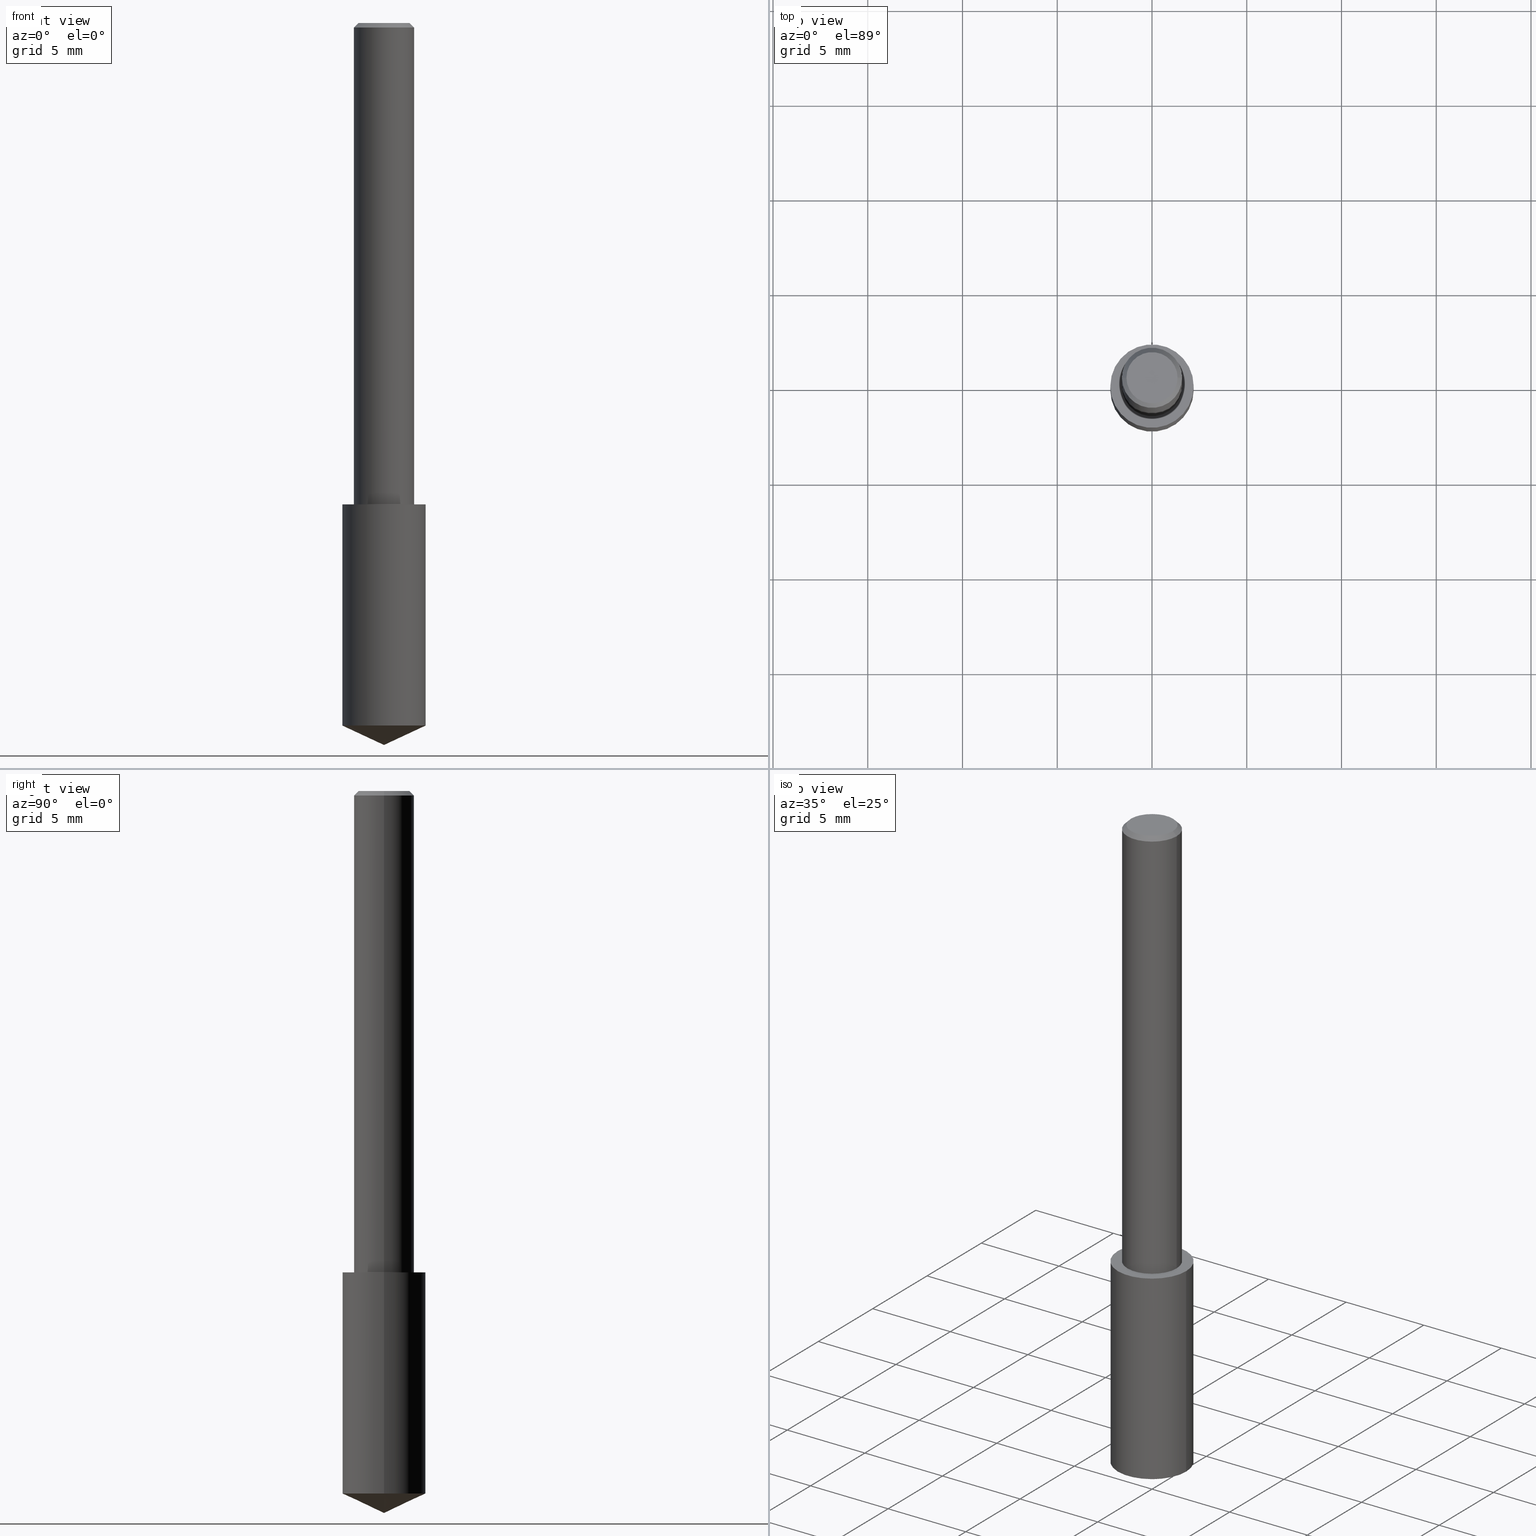
[diagram: canonical four-view strip — front | top / right | iso, engineering-drawing reading convention]
A machine part, canonical four-view strip (front | top / right | iso — engineering-drawing reading convention). The complete STEP part file that produces these views, byte-faithful:
ISO-10303-21;
HEADER;
FILE_DESCRIPTION (( 'STEP AP203' ),
    '1' );
FILE_NAME ('06110.STEP',
    '2024-04-30T18:20:57',
    ( '' ),
    ( '' ),
    'SwSTEP 2.0',
    'SolidWorks 2023',
    '' );
FILE_SCHEMA (( 'CONFIG_CONTROL_DESIGN' ));
ENDSEC;

DATA;
#1 = DIRECTION ( 'NONE',  ( -2.445468806185136597E-29, 3.491481338843145583E-15, 1.000000000000000000 ) ) ;
#2 = PERSON_AND_ORGANIZATION_ROLE ( 'design_owner' ) ;
#3 = CIRCLE ( 'NONE', #252, 0.06250000000000012490 ) ;
#4 = CARTESIAN_POINT ( 'NONE',  ( 2.292627005798582375E-31, -3.273263755165472650E-17, -0.009375000000000067307 ) ) ;
#5 = PERSON_AND_ORGANIZATION ( #324, #83 ) ;
#6 = ADVANCED_FACE ( 'NONE', ( #276 ), #151, .T. ) ;
#7 = EDGE_LOOP ( 'NONE', ( #31, #33 ) ) ;
#8 = DIRECTION ( 'NONE',  ( -2.445468806185136597E-29, 3.491481338843145583E-15, 1.000000000000000000 ) ) ;
#9 = DATE_AND_TIME ( #241, #294 ) ;
#10 = ORIENTED_EDGE ( 'NONE', *, *, #130, .T. ) ;
#11 = EDGE_CURVE ( 'NONE', #115, #13, #203, .T. ) ;
#12 = CARTESIAN_POINT ( 'NONE',  ( -9.261009624683002666E-28, 1.322226732217803884E-13, 37.87007874015748143 ) ) ;
#13 = VERTEX_POINT ( 'NONE', #303 ) ;
#14 = AXIS2_PLACEMENT_3D ( 'NONE', #307, #135, #114 ) ;
#15 = ORIENTED_EDGE ( 'NONE', *, *, #291, .T. ) ;
#16 = EDGE_CURVE ( 'NONE', #63, #316, #226, .T. ) ;
#17 = AXIS2_PLACEMENT_3D ( 'NONE', #275, #233, #205 ) ;
#18 = APPROVAL ( #264, 'UNSPECIFIED' ) ;
#19 = ORIENTED_EDGE ( 'NONE', *, *, #25, .F. ) ;
#20 = CARTESIAN_POINT ( 'NONE',  ( -7.487088864773345706E-50, 1.068957861474247695E-35, 3.061616997868395197E-21 ) ) ;
#21 = ADVANCED_FACE ( 'NONE', ( #43 ), #201, .F. ) ;
#22 = VECTOR ( 'NONE', #251, 39.37007874015748854 ) ;
#23 = CIRCLE ( 'NONE', #46, 0.08659999999999998255 ) ;
#24 = VECTOR ( 'NONE', #243, 39.37007874015748143 ) ;
#25 = EDGE_CURVE ( 'NONE', #115, #246, #250, .T. ) ;
#26 = DIRECTION ( 'NONE',  ( 1.000000000000000000, -6.982962677686264344E-15, 0.000000000000000000 ) ) ;
#27 = FACE_OUTER_BOUND ( 'NONE', #242, .T. ) ;
#28 = PERSON_AND_ORGANIZATION_ROLE ( 'creator' ) ;
#29 = ORIENTED_EDGE ( 'NONE', *, *, #293, .T. ) ;
#30 = DIRECTION ( 'NONE',  ( 1.000000000000000000, -6.982962677686269866E-15, 0.000000000000000000 ) ) ;
#31 = ORIENTED_EDGE ( 'NONE', *, *, #213, .T. ) ;
#32 = VECTOR ( 'NONE', #91, 39.37007874015748143 ) ;
#33 = ORIENTED_EDGE ( 'NONE', *, *, #51, .T. ) ;
#34 = EDGE_CURVE ( 'NONE', #246, #179, #98, .T. ) ;
#35 = AXIS2_PLACEMENT_3D ( 'NONE', #124, #93, #235 ) ;
#36 = CARTESIAN_POINT ( 'NONE',  ( 0.06250000000000006939, -4.364351673553921624E-16, 3.047610484872463374E-30 ) ) ;
#37 = CARTESIAN_POINT ( 'NONE',  ( -0.06250000000000006939, 4.440892098500631092E-16, -3.074334431409319267E-30 ) ) ;
#38 = APPROVAL ( #260, 'UNSPECIFIED' ) ;
#39 = FACE_OUTER_BOUND ( 'NONE', #168, .T. ) ;
#40 = DIRECTION ( 'NONE',  ( 0.7071067811865450192, -7.319954787623246579E-15, -0.7071067811865500152 ) ) ;
#41 = CARTESIAN_POINT ( 'NONE',  ( 3.569449693217560249E-29, -5.096228159724480781E-15, -1.459617756803777144 ) ) ;
#42 = EDGE_CURVE ( 'NONE', #194, #179, #326, .T. ) ;
#43 = FACE_OUTER_BOUND ( 'NONE', #7, .T. ) ;
#44 = AXIS2_PLACEMENT_3D ( 'NONE', #104, #8, #255 ) ;
#45 = FACE_OUTER_BOUND ( 'NONE', #239, .T. ) ;
#46 = AXIS2_PLACEMENT_3D ( 'NONE', #281, #1, #272 ) ;
#47 = PLANE ( 'NONE',  #333 ) ;
#48 = PERSON_AND_ORGANIZATION ( #324, #83 ) ;
#49 = CALENDAR_DATE ( 2024, 30, 4 ) ;
#50 = ORIENTED_EDGE ( 'NONE', *, *, #51, .F. ) ;
#51 = EDGE_CURVE ( 'NONE', #63, #134, #61, .T. ) ;
#52 = DIRECTION ( 'NONE',  ( -2.445468806185136597E-29, 3.491481338843145583E-15, 1.000000000000000000 ) ) ;
#53 = AXIS2_PLACEMENT_3D ( 'NONE', #66, #150, #96 ) ;
#54 = COORDINATED_UNIVERSAL_TIME_OFFSET ( 5, 0, .BEHIND. ) ;
#55 = ORIENTED_EDGE ( 'NONE', *, *, #34, .F. ) ;
#56 = CARTESIAN_POINT ( 'NONE',  ( -0.08659999999999998255, -3.678524740115566939E-15, -1.000000000000000222 ) ) ;
#57 = DATE_AND_TIME ( #290, #132 ) ;
#58 = ORIENTED_EDGE ( 'NONE', *, *, #293, .F. ) ;
#59 = ORIENTED_EDGE ( 'NONE', *, *, #100, .T. ) ;
#60 = ADVANCED_FACE ( 'NONE', ( #155 ), #237, .T. ) ;
#61 = CIRCLE ( 'NONE', #249, 0.05312499999999999861 ) ;
#62 = AXIS2_PLACEMENT_3D ( 'NONE', #127, #148, #273 ) ;
#63 = VERTEX_POINT ( 'NONE', #77 ) ;
#64 = CARTESIAN_POINT ( 'NONE',  ( 3.668203209277704895E-29, -5.237222008264718177E-15, -1.500000000000000222 ) ) ;
#65 = DIRECTION ( 'NONE',  ( 1.000000000000000000, -6.982962677686265922E-15, 4.876176775795935793E-29 ) ) ;
#66 = CARTESIAN_POINT ( 'NONE',  ( 2.292627005798582375E-31, -3.273263755165472650E-17, -0.009375000000000067307 ) ) ;
#67 = AXIS2_PLACEMENT_3D ( 'NONE', #161, #82, #30 ) ;
#68 = LINE ( 'NONE', #36, #32 ) ;
#69 = CC_DESIGN_PERSON_AND_ORGANIZATION_ASSIGNMENT ( #70, #166, ( #227 ) ) ;
#70 = PERSON_AND_ORGANIZATION ( #324, #83 ) ;
#71 = PRODUCT ( '06110', '06110', '', ( #74 ) ) ;
#72 = CARTESIAN_POINT ( 'NONE',  ( 2.445468806185137438E-29, -3.491481338843146371E-15, -1.000000000000000222 ) ) ;
#73 = DIRECTION ( 'NONE',  ( 1.000000000000000000, -6.982962677686266711E-15, 4.876176775795935793E-29 ) ) ;
#74 = MECHANICAL_CONTEXT ( 'NONE', #228, 'mechanical' ) ;
#75 = DIRECTION ( 'NONE',  ( 1.000000000000000000, -6.982962677686266711E-15, 4.876176628004948512E-29 ) ) ;
#76 = CC_DESIGN_PERSON_AND_ORGANIZATION_ASSIGNMENT ( #185, #2, ( #71 ) ) ;
#77 = CARTESIAN_POINT ( 'NONE',  ( 0.05312499999999999861, -4.129888592719939842E-16, 3.061617000609493422E-21 ) ) ;
#78 = CARTESIAN_POINT ( 'NONE',  ( 0.06250000000000012490, -3.927916506198539224E-15, -1.000000000000000222 ) ) ;
#79 = ORIENTED_EDGE ( 'NONE', *, *, #311, .F. ) ;
#80 = COORDINATED_UNIVERSAL_TIME_OFFSET ( 5, 0, .BEHIND. ) ;
#81 = APPROVAL_PERSON_ORGANIZATION ( #323, #18, #218 ) ;
#82 = DIRECTION ( 'NONE',  ( -2.445468806185136597E-29, 3.491481338843145583E-15, 1.000000000000000000 ) ) ;
#83 = ORGANIZATION ( 'UNSPECIFIED', 'UNSPECIFIED', '' ) ;
#84 = DATE_AND_TIME ( #88, #322 ) ;
#85 = EDGE_CURVE ( 'NONE', #13, #246, #224, .T. ) ;
#86 = CIRCLE ( 'NONE', #44, 0.06250000000000012490 ) ;
#87 = ADVANCED_FACE ( 'NONE', ( #27 ), #230, .T. ) ;
#88 = CALENDAR_DATE ( 2024, 30, 4 ) ;
#89 =( NAMED_UNIT ( * ) SI_UNIT ( $, .STERADIAN. ) SOLID_ANGLE_UNIT ( ) );
#90 = APPROVAL_PERSON_ORGANIZATION ( #48, #38, #282 ) ;
#91 = DIRECTION ( 'NONE',  ( -2.445468806185136877E-29, 3.491481338843145188E-15, 1.000000000000000000 ) ) ;
#92 = APPROVAL_DATE_TIME ( #57, #232 ) ;
#93 = DIRECTION ( 'NONE',  ( -2.445468806185136597E-29, 3.491481338843145583E-15, 1.000000000000000000 ) ) ;
#94 = EDGE_CURVE ( 'NONE', #246, #13, #176, .T. ) ;
#95 = DIRECTION ( 'NONE',  ( -2.445468806185136597E-29, 3.491481338843145583E-15, 1.000000000000000000 ) ) ;
#96 = DIRECTION ( 'NONE',  ( -1.000000000000000000, 6.982962677686266711E-15, 0.000000000000000000 ) ) ;
#97 = SECURITY_CLASSIFICATION_LEVEL ( 'unclassified' ) ;
#98 = LINE ( 'NONE', #206, #321 ) ;
#99 = PRODUCT_DEFINITION_SHAPE ( 'NONE', 'NONE',  #197 ) ;
#100 = EDGE_CURVE ( 'NONE', #256, #141, #3, .T. ) ;
#101 = CYLINDRICAL_SURFACE ( 'NONE', #257, 0.06250000000000006939 ) ;
#102 = DIRECTION ( 'NONE',  ( -1.000000000000000000, 6.982962677686265922E-15, -4.876176775795935793E-29 ) ) ;
#103 = CARTESIAN_POINT ( 'NONE',  ( -9.261009624683002666E-28, 1.322226732217803884E-13, 37.87007874015748143 ) ) ;
#104 = CARTESIAN_POINT ( 'NONE',  ( 2.445468806185137438E-29, -3.491481338843146371E-15, -1.000000000000000222 ) ) ;
#105 = ORIENTED_EDGE ( 'NONE', *, *, #130, .F. ) ;
#106 = FACE_OUTER_BOUND ( 'NONE', #325, .T. ) ;
#107 = APPLICATION_PROTOCOL_DEFINITION ( 'international standard', 'config_control_design', 1994, #228 ) ;
#108 = ORIENTED_EDGE ( 'NONE', *, *, #149, .T. ) ;
#109 = PRODUCT_RELATED_PRODUCT_CATEGORY ( 'detail', '', ( #71 ) ) ;
#110 = CARTESIAN_POINT ( 'NONE',  ( 2.445468806185137438E-29, -3.491481338843146371E-15, -1.000000000000000222 ) ) ;
#111 = CIRCLE ( 'NONE', #268, 0.06250000000000000000 ) ;
#112 = EDGE_LOOP ( 'NONE', ( #283, #117, #15, #221 ) ) ;
#113 = EDGE_CURVE ( 'NONE', #297, #316, #111, .T. ) ;
#114 = DIRECTION ( 'NONE',  ( -1.000000000000000000, 6.982962677686266711E-15, 0.000000000000000000 ) ) ;
#115 = VERTEX_POINT ( 'NONE', #156 ) ;
#116 = MANIFOLD_SOLID_BREP ( 'Body-Move/Copy2[2]', #182 ) ;
#117 = ORIENTED_EDGE ( 'NONE', *, *, #213, .F. ) ;
#118 = CONICAL_SURFACE ( 'NONE', #158, 84.42940631927382356, 1.134464013796313564 ) ;
#119 = ORIENTED_EDGE ( 'NONE', *, *, #291, .F. ) ;
#120 = CARTESIAN_POINT ( 'NONE',  ( -3.743544432386672853E-50, 5.344789307371238476E-36, 1.530808498934197599E-21 ) ) ;
#121 = DIRECTION ( 'NONE',  ( 0.9063077870366496036, -4.853149677051374846E-15, 0.4226182617406999964 ) ) ;
#122 = APPROVAL_PERSON_ORGANIZATION ( #131, #232, #313 ) ;
#123 = VECTOR ( 'NONE', #229, 39.37007874015748143 ) ;
#124 = CARTESIAN_POINT ( 'NONE',  ( 2.292627005798582375E-31, -3.273263755165472650E-17, -0.009375000000000067307 ) ) ;
#125 = CARTESIAN_POINT ( 'NONE',  ( 3.668203209277704895E-29, -5.237222008264718177E-15, -1.500000000000000222 ) ) ;
#126 = ADVANCED_FACE ( 'NONE', ( #106 ), #208, .T. ) ;
#127 = CARTESIAN_POINT ( 'NONE',  ( -7.487088864773345706E-50, 1.068957861474247695E-35, 3.061616997868395197E-21 ) ) ;
#128 = CARTESIAN_POINT ( 'NONE',  ( -0.08659999999999998255, -2.876151329674899932E-15, -1.000000000000000222 ) ) ;
#129 = FACE_OUTER_BOUND ( 'NONE', #160, .T. ) ;
#130 = EDGE_CURVE ( 'NONE', #13, #194, #240, .T. ) ;
#131 = PERSON_AND_ORGANIZATION ( #324, #83 ) ;
#132 = LOCAL_TIME ( 14, 20, 57.00000000000000000, #263 ) ;
#133 = DATE_AND_TIME ( #49, #144 ) ;
#134 = VERTEX_POINT ( 'NONE', #234 ) ;
#135 = DIRECTION ( 'NONE',  ( 2.445468806185136597E-29, -3.491481338843145583E-15, -1.000000000000000000 ) ) ;
#136 = CC_DESIGN_PERSON_AND_ORGANIZATION_ASSIGNMENT ( #340, #334, ( #220 ) ) ;
#137 = ORIENTED_EDGE ( 'NONE', *, *, #11, .F. ) ;
#138 = DESIGN_CONTEXT ( 'detailed design', #202, 'design' ) ;
#139 = DIRECTION ( 'NONE',  ( -2.445468806185136597E-29, 3.491481338843145583E-15, 1.000000000000000000 ) ) ;
#140 = APPROVAL_DATE_TIME ( #84, #18 ) ;
#141 = VERTEX_POINT ( 'NONE', #78 ) ;
#142 = AXIS2_PLACEMENT_3D ( 'NONE', #120, #328, #147 ) ;
#143 = ORIENTED_EDGE ( 'NONE', *, *, #34, .T. ) ;
#144 = LOCAL_TIME ( 14, 20, 57.00000000000000000, #286 ) ;
#145 = ORIENTED_EDGE ( 'NONE', *, *, #223, .T. ) ;
#146 = DIRECTION ( 'NONE',  ( -2.445468806185136597E-29, 3.491481338843145583E-15, 1.000000000000000000 ) ) ;
#147 = DIRECTION ( 'NONE',  ( -1.000000000000000000, 6.982962677686265922E-15, -4.876176775795935793E-29 ) ) ;
#148 = DIRECTION ( 'NONE',  ( -2.445468806185136597E-29, 3.491481338843145583E-15, 1.000000000000000000 ) ) ;
#149 = EDGE_CURVE ( 'NONE', #141, #256, #86, .T. ) ;
#150 = DIRECTION ( 'NONE',  ( 2.445468806185136597E-29, -3.491481338843145583E-15, -1.000000000000000000 ) ) ;
#151 = CONICAL_SURFACE ( 'NONE', #53, 0.06250000000000000000, 0.7853981633974447263 ) ;
#152 = PLANE ( 'NONE',  #327 ) ;
#153 = PERSON_AND_ORGANIZATION ( #324, #83 ) ;
#154 = CARTESIAN_POINT ( 'NONE',  ( -0.06250000000000012490, -1.318017778347335489E-15, -1.000000000000000222 ) ) ;
#155 = FACE_OUTER_BOUND ( 'NONE', #212, .T. ) ;
#156 = CARTESIAN_POINT ( 'NONE',  ( 3.668203209277704895E-29, -5.237222008264718177E-15, -1.500000000000000222 ) ) ;
#157 = EDGE_LOOP ( 'NONE', ( #108, #29, #320, #79 ) ) ;
#158 = AXIS2_PLACEMENT_3D ( 'NONE', #12, #314, #186 ) ;
#159 = CC_DESIGN_APPROVAL ( #38, ( #197 ) ) ;
#160 = EDGE_LOOP ( 'NONE', ( #244, #295 ) ) ;
#161 = CARTESIAN_POINT ( 'NONE',  ( 3.569449693217560249E-29, -5.096228159724480781E-15, -1.459617756803777144 ) ) ;
#162 = ORIENTED_EDGE ( 'NONE', *, *, #311, .T. ) ;
#163 = DATE_TIME_ROLE ( 'classification_date' ) ;
#164 = ORIENTED_EDGE ( 'NONE', *, *, #94, .F. ) ;
#165 = CLOSED_SHELL ( 'NONE', ( #126, #169, #60, #288, #269 ) ) ;
#166 = PERSON_AND_ORGANIZATION_ROLE ( 'classification_officer' ) ;
#167 = ORIENTED_EDGE ( 'NONE', *, *, #42, .F. ) ;
#168 = EDGE_LOOP ( 'NONE', ( #105, #187, #143, #167 ) ) ;
#169 = ADVANCED_FACE ( 'NONE', ( #280 ), #118, .T. ) ;
#170 = ORIENTED_EDGE ( 'NONE', *, *, #85, .F. ) ;
#171 = DIRECTION ( 'NONE',  ( -2.445468806185136877E-29, 3.491481338843145188E-15, 1.000000000000000000 ) ) ;
#172 = DIRECTION ( 'NONE',  ( -2.445468806185136597E-29, 3.491481338843145583E-15, 1.000000000000000000 ) ) ;
#173 = LENGTH_MEASURE_WITH_UNIT ( LENGTH_MEASURE( 0.02539999999999999897 ), #247 );
#174 = CARTESIAN_POINT ( 'NONE',  ( 3.546877153810406601E-29, -1.914201896773709449E-15, -1.000000000000000222 ) ) ;
#175 = CARTESIAN_POINT ( 'NONE',  ( 0.06250000000000000000, -4.615137624123754923E-16, -0.009375000000000067307 ) ) ;
#176 = CIRCLE ( 'NONE', #67, 0.08659999999999998255 ) ;
#177 = CARTESIAN_POINT ( 'NONE',  ( -0.06250000000000000000, 4.037025298037369491E-16, -0.009375000000000067307 ) ) ;
#178 = CYLINDRICAL_SURFACE ( 'NONE', #17, 0.06250000000000006939 ) ;
#179 = VERTEX_POINT ( 'NONE', #285 ) ;
#180 = CARTESIAN_POINT ( 'NONE',  ( 0.06250000000000000000, -4.691678049070464390E-16, -0.009375000000000067307 ) ) ;
#181 = FACE_OUTER_BOUND ( 'NONE', #157, .T. ) ;
#182 = CLOSED_SHELL ( 'NONE', ( #87, #209, #215, #196, #6, #21 ) ) ;
#183 =( GEOMETRIC_REPRESENTATION_CONTEXT ( 3 ) GLOBAL_UNCERTAINTY_ASSIGNED_CONTEXT ( ( #210 ) ) GLOBAL_UNIT_ASSIGNED_CONTEXT ( ( #222, #296, #89 ) ) REPRESENTATION_CONTEXT ( 'NONE', 'WORKASPACE' ) );
#184 = DIRECTION ( 'NONE',  ( 2.438088387897960049E-29, -3.491481338843145188E-15, -1.000000000000000000 ) ) ;
#185 = PERSON_AND_ORGANIZATION ( #324, #83 ) ;
#186 = DIRECTION ( 'NONE',  ( 1.000000000000000000, -6.982962677686265922E-15, 0.000000000000000000 ) ) ;
#187 = ORIENTED_EDGE ( 'NONE', *, *, #85, .T. ) ;
#188 = ORIENTED_EDGE ( 'NONE', *, *, #25, .T. ) ;
#189 = AXIS2_PLACEMENT_3D ( 'NONE', #211, #339, #236 ) ;
#190 = DIRECTION ( 'NONE',  ( 1.000000000000000000, -6.982962677686266711E-15, 0.000000000000000000 ) ) ;
#191 = APPLICATION_PROTOCOL_DEFINITION ( 'international standard', 'config_control_design', 1994, #202 ) ;
#192 = DIRECTION ( 'NONE',  ( -2.445468806185136597E-29, 3.491481338843145583E-15, 1.000000000000000000 ) ) ;
#193 = CYLINDRICAL_SURFACE ( 'NONE', #231, 0.08659999999999998255 ) ;
#194 = VERTEX_POINT ( 'NONE', #56 ) ;
#195 = VECTOR ( 'NONE', #121, 39.37007874015748854 ) ;
#196 = ADVANCED_FACE ( 'NONE', ( #338 ), #101, .T. ) ;
#197 = PRODUCT_DEFINITION ( 'UNKNOWN', '', #220, #138 ) ;
#198 = AXIS2_PLACEMENT_3D ( 'NONE', #259, #192, #216 ) ;
#199 = VECTOR ( 'NONE', #329, 39.37007874015748143 ) ;
#200 = CC_DESIGN_PERSON_AND_ORGANIZATION_ASSIGNMENT ( #153, #28, ( #220 ) ) ;
#201 = PLANE ( 'NONE',  #142 ) ;
#202 = APPLICATION_CONTEXT ( 'configuration controlled 3d designs of mechanical parts and assemblies' ) ;
#203 = LINE ( 'NONE', #64, #22 ) ;
#204 = LINE ( 'NONE', #37, #199 ) ;
#205 = DIRECTION ( 'NONE',  ( 1.000000000000000000, -6.982962677686266711E-15, 4.876176775795935793E-29 ) ) ;
#206 = CARTESIAN_POINT ( 'NONE',  ( 0.08659999999999998255, -4.096205906730777690E-15, -1.000000000000000222 ) ) ;
#207 = CARTESIAN_POINT ( 'NONE',  ( 0.000000000000000000, 0.000000000000000000, 0.000000000000000000 ) ) ;
#208 = CYLINDRICAL_SURFACE ( 'NONE', #198, 0.08659999999999998255 ) ;
#209 = ADVANCED_FACE ( 'NONE', ( #181 ), #178, .T. ) ;
#210 = UNCERTAINTY_MEASURE_WITH_UNIT (LENGTH_MEASURE( 1.000000000000000082E-05 ), #222, 'distance_accuracy_value', 'NONE');
#211 = CARTESIAN_POINT ( 'NONE',  ( 0.000000000000000000, 0.000000000000000000, 0.000000000000000000 ) ) ;
#212 = EDGE_LOOP ( 'NONE', ( #137, #188, #170 ) ) ;
#213 = EDGE_CURVE ( 'NONE', #134, #63, #301, .T. ) ;
#214 = DATE_TIME_ROLE ( 'creation_date' ) ;
#215 = ADVANCED_FACE ( 'NONE', ( #129 ), #47, .F. ) ;
#216 = DIRECTION ( 'NONE',  ( 1.000000000000000000, -6.982962677686269866E-15, 0.000000000000000000 ) ) ;
#217 = ORIENTED_EDGE ( 'NONE', *, *, #278, .F. ) ;
#218 = APPROVAL_ROLE ( '' ) ;
#219 = ORIENTED_EDGE ( 'NONE', *, *, #278, .T. ) ;
#220 = PRODUCT_DEFINITION_FORMATION_WITH_SPECIFIED_SOURCE ( 'ANY', '', #71, .NOT_KNOWN. ) ;
#221 = ORIENTED_EDGE ( 'NONE', *, *, #113, .T. ) ;
#222 =( CONVERSION_BASED_UNIT ( 'INCH', #173 ) LENGTH_UNIT ( ) NAMED_UNIT ( #305 ) );
#223 = EDGE_CURVE ( 'NONE', #316, #297, #302, .T. ) ;
#224 = CIRCLE ( 'NONE', #225, 0.08659999999999998255 ) ;
#225 = AXIS2_PLACEMENT_3D ( 'NONE', #41, #277, #254 ) ;
#226 = LINE ( 'NONE', #175, #332 ) ;
#227 = SECURITY_CLASSIFICATION ( '', '', #97 ) ;
#228 = APPLICATION_CONTEXT ( 'configuration controlled 3d designs of mechanical parts and assemblies' ) ;
#229 = DIRECTION ( 'NONE',  ( -0.7071067811865450192, 2.468850131082230634E-15, -0.7071067811865500152 ) ) ;
#230 = CONICAL_SURFACE ( 'NONE', #14, 0.06250000000000000000, 0.7853981633974447263 ) ;
#231 = AXIS2_PLACEMENT_3D ( 'NONE', #312, #308, #287 ) ;
#232 = APPROVAL ( #317, 'UNSPECIFIED' ) ;
#233 = DIRECTION ( 'NONE',  ( -2.445468806185136597E-29, 3.491481338843145583E-15, 1.000000000000000000 ) ) ;
#234 = CARTESIAN_POINT ( 'NONE',  ( -0.05312499999999999861, 3.873362110279099094E-16, 3.061616995216862494E-21 ) ) ;
#235 = DIRECTION ( 'NONE',  ( 1.000000000000000000, -6.982962677686266711E-15, 0.000000000000000000 ) ) ;
#236 = DIRECTION ( 'NONE',  ( 1.000000000000000000, 0.000000000000000000, 0.000000000000000000 ) ) ;
#237 = CONICAL_SURFACE ( 'NONE', #266, 84.42940631927382356, 1.134464013796313564 ) ;
#238 = APPROVAL_DATE_TIME ( #133, #38 ) ;
#239 = EDGE_LOOP ( 'NONE', ( #219, #271 ) ) ;
#240 = LINE ( 'NONE', #128, #24 ) ;
#241 = CALENDAR_DATE ( 2024, 30, 4 ) ;
#242 = EDGE_LOOP ( 'NONE', ( #50, #310, #145, #119 ) ) ;
#243 = DIRECTION ( 'NONE',  ( -2.445468806185136877E-29, 3.491481338843145188E-15, 1.000000000000000000 ) ) ;
#244 = ORIENTED_EDGE ( 'NONE', *, *, #149, .F. ) ;
#245 = AXIS2_PLACEMENT_3D ( 'NONE', #298, #146, #248 ) ;
#246 = VERTEX_POINT ( 'NONE', #337 ) ;
#247 =( LENGTH_UNIT ( ) NAMED_UNIT ( * ) SI_UNIT ( $, .METRE. ) );
#248 = DIRECTION ( 'NONE',  ( 1.000000000000000000, -6.982962677686269866E-15, 0.000000000000000000 ) ) ;
#249 = AXIS2_PLACEMENT_3D ( 'NONE', #20, #172, #75 ) ;
#250 = LINE ( 'NONE', #125, #195 ) ;
#251 = DIRECTION ( 'NONE',  ( -0.9063077870366496036, 7.915267918739014631E-15, 0.4226182617406999964 ) ) ;
#252 = AXIS2_PLACEMENT_3D ( 'NONE', #110, #52, #26 ) ;
#253 = CC_DESIGN_DATE_AND_TIME_ASSIGNMENT ( #315, #163, ( #227 ) ) ;
#254 = DIRECTION ( 'NONE',  ( 1.000000000000000000, -6.982962677686269866E-15, 0.000000000000000000 ) ) ;
#255 = DIRECTION ( 'NONE',  ( 1.000000000000000000, -6.982962677686264344E-15, 0.000000000000000000 ) ) ;
#256 = VERTEX_POINT ( 'NONE', #154 ) ;
#257 = AXIS2_PLACEMENT_3D ( 'NONE', #207, #306, #73 ) ;
#258 = LOCAL_TIME ( 14, 20, 57.00000000000000000, #54 ) ;
#259 = CARTESIAN_POINT ( 'NONE',  ( 2.445468806185137438E-29, -3.491481338843146371E-15, -1.000000000000000222 ) ) ;
#260 = APPROVAL_STATUS ( 'not_yet_approved' ) ;
#261 = EDGE_LOOP ( 'NONE', ( #58, #59, #162, #265 ) ) ;
#262 = ADVANCED_BREP_SHAPE_REPRESENTATION ( '06110', ( #335, #116, #189 ), #183 ) ;
#263 = COORDINATED_UNIVERSAL_TIME_OFFSET ( 5, 0, .BEHIND. ) ;
#264 = APPROVAL_STATUS ( 'not_yet_approved' ) ;
#265 = ORIENTED_EDGE ( 'NONE', *, *, #113, .F. ) ;
#266 = AXIS2_PLACEMENT_3D ( 'NONE', #103, #95, #274 ) ;
#267 = CC_DESIGN_APPROVAL ( #18, ( #227 ) ) ;
#268 = AXIS2_PLACEMENT_3D ( 'NONE', #4, #139, #190 ) ;
#269 = ADVANCED_FACE ( 'NONE', ( #45 ), #152, .F. ) ;
#270 = CC_DESIGN_SECURITY_CLASSIFICATION ( #227, ( #220 ) ) ;
#271 = ORIENTED_EDGE ( 'NONE', *, *, #42, .T. ) ;
#272 = DIRECTION ( 'NONE',  ( 1.000000000000000000, -6.982962677686269866E-15, 0.000000000000000000 ) ) ;
#273 = DIRECTION ( 'NONE',  ( 1.000000000000000000, -6.982962677686266711E-15, 4.876176628004948512E-29 ) ) ;
#274 = DIRECTION ( 'NONE',  ( 1.000000000000000000, -6.982962677686265922E-15, 0.000000000000000000 ) ) ;
#275 = CARTESIAN_POINT ( 'NONE',  ( 0.000000000000000000, 0.000000000000000000, 0.000000000000000000 ) ) ;
#276 = FACE_OUTER_BOUND ( 'NONE', #112, .T. ) ;
#277 = DIRECTION ( 'NONE',  ( -2.445468806185136597E-29, 3.491481338843145583E-15, 1.000000000000000000 ) ) ;
#278 = EDGE_CURVE ( 'NONE', #179, #194, #23, .T. ) ;
#279 = CC_DESIGN_APPROVAL ( #232, ( #220 ) ) ;
#280 = FACE_OUTER_BOUND ( 'NONE', #284, .T. ) ;
#281 = CARTESIAN_POINT ( 'NONE',  ( 2.445468806185136877E-29, -3.491481338843145977E-15, -1.000000000000000222 ) ) ;
#282 = APPROVAL_ROLE ( '' ) ;
#283 = ORIENTED_EDGE ( 'NONE', *, *, #16, .F. ) ;
#284 = EDGE_LOOP ( 'NONE', ( #19, #292, #164 ) ) ;
#285 = CARTESIAN_POINT ( 'NONE',  ( 0.08659999999999998255, -4.096205906730776901E-15, -1.000000000000000222 ) ) ;
#286 = COORDINATED_UNIVERSAL_TIME_OFFSET ( 5, 0, .BEHIND. ) ;
#287 = DIRECTION ( 'NONE',  ( 1.000000000000000000, -6.982962677686269866E-15, 0.000000000000000000 ) ) ;
#288 = ADVANCED_FACE ( 'NONE', ( #39 ), #193, .T. ) ;
#289 = CALENDAR_DATE ( 2024, 30, 4 ) ;
#290 = CALENDAR_DATE ( 2024, 30, 4 ) ;
#291 = EDGE_CURVE ( 'NONE', #134, #297, #331, .T. ) ;
#292 = ORIENTED_EDGE ( 'NONE', *, *, #11, .T. ) ;
#293 = EDGE_CURVE ( 'NONE', #256, #297, #204, .T. ) ;
#294 = LOCAL_TIME ( 14, 20, 57.00000000000000000, #80 ) ;
#295 = ORIENTED_EDGE ( 'NONE', *, *, #100, .F. ) ;
#296 =( NAMED_UNIT ( * ) PLANE_ANGLE_UNIT ( ) SI_UNIT ( $, .RADIAN. ) );
#297 = VERTEX_POINT ( 'NONE', #304 ) ;
#298 = CARTESIAN_POINT ( 'NONE',  ( 2.445468806185136877E-29, -3.491481338843145977E-15, -1.000000000000000222 ) ) ;
#299 = ORIENTED_EDGE ( 'NONE', *, *, #94, .T. ) ;
#300 = CC_DESIGN_DATE_AND_TIME_ASSIGNMENT ( #9, #214, ( #197 ) ) ;
#301 = CIRCLE ( 'NONE', #62, 0.05312499999999999861 ) ;
#302 = CIRCLE ( 'NONE', #35, 0.06250000000000000000 ) ;
#303 = CARTESIAN_POINT ( 'NONE',  ( -0.08660000000000001030, -4.480898150556233158E-15, -1.459617756803777144 ) ) ;
#304 = CARTESIAN_POINT ( 'NONE',  ( -0.06250000000000000000, -1.318017778347336672E-15, -0.009375000000000067307 ) ) ;
#305 = DIMENSIONAL_EXPONENTS ( 1.000000000000000000, 0.000000000000000000, 0.000000000000000000, 0.000000000000000000, 0.000000000000000000, 0.000000000000000000, 0.000000000000000000 ) ;
#306 = DIRECTION ( 'NONE',  ( -2.445468806185136597E-29, 3.491481338843145583E-15, 1.000000000000000000 ) ) ;
#307 = CARTESIAN_POINT ( 'NONE',  ( 2.292627005798582375E-31, -3.273263755165472650E-17, -0.009375000000000067307 ) ) ;
#308 = DIRECTION ( 'NONE',  ( -2.445468806185136597E-29, 3.491481338843145583E-15, 1.000000000000000000 ) ) ;
#309 = PERSON_AND_ORGANIZATION_ROLE ( 'creator' ) ;
#310 = ORIENTED_EDGE ( 'NONE', *, *, #16, .T. ) ;
#311 = EDGE_CURVE ( 'NONE', #141, #316, #68, .T. ) ;
#312 = CARTESIAN_POINT ( 'NONE',  ( 2.445468806185137438E-29, -3.491481338843146371E-15, -1.000000000000000222 ) ) ;
#313 = APPROVAL_ROLE ( '' ) ;
#314 = DIRECTION ( 'NONE',  ( -2.445468806185136597E-29, 3.491481338843145583E-15, 1.000000000000000000 ) ) ;
#315 = DATE_AND_TIME ( #289, #258 ) ;
#316 = VERTEX_POINT ( 'NONE', #180 ) ;
#317 = APPROVAL_STATUS ( 'not_yet_approved' ) ;
#318 = CC_DESIGN_PERSON_AND_ORGANIZATION_ASSIGNMENT ( #5, #309, ( #197 ) ) ;
#319 = COORDINATED_UNIVERSAL_TIME_OFFSET ( 5, 0, .BEHIND. ) ;
#320 = ORIENTED_EDGE ( 'NONE', *, *, #223, .F. ) ;
#321 = VECTOR ( 'NONE', #171, 39.37007874015748143 ) ;
#322 = LOCAL_TIME ( 14, 20, 57.00000000000000000, #319 ) ;
#323 = PERSON_AND_ORGANIZATION ( #324, #83 ) ;
#324 = PERSON ( 'UNSPECIFIED', 'UNSPECIFIED', 'UNSPECIFIED', ('UNSPECIFIED'), ('UNSPECIFIED'), ('UNSPECIFIED') ) ;
#325 = EDGE_LOOP ( 'NONE', ( #299, #10, #217, #55 ) ) ;
#326 = CIRCLE ( 'NONE', #245, 0.08659999999999998255 ) ;
#327 = AXIS2_PLACEMENT_3D ( 'NONE', #174, #184, #102 ) ;
#328 = DIRECTION ( 'NONE',  ( 2.438088387897960049E-29, -3.491481338843145188E-15, -1.000000000000000000 ) ) ;
#329 = DIRECTION ( 'NONE',  ( -2.445468806185136877E-29, 3.491481338843145188E-15, 1.000000000000000000 ) ) ;
#330 = DIRECTION ( 'NONE',  ( -2.438088387897960049E-29, 3.491481338843145188E-15, 1.000000000000000000 ) ) ;
#331 = LINE ( 'NONE', #177, #123 ) ;
#332 = VECTOR ( 'NONE', #40, 39.37007874015748143 ) ;
#333 = AXIS2_PLACEMENT_3D ( 'NONE', #72, #330, #65 ) ;
#334 = PERSON_AND_ORGANIZATION_ROLE ( 'design_supplier' ) ;
#335 = MANIFOLD_SOLID_BREP ( 'Body-Move/Copy2[1]', #165 ) ;
#336 = SHAPE_DEFINITION_REPRESENTATION ( #99, #262 ) ;
#337 = CARTESIAN_POINT ( 'NONE',  ( 0.08660000000000001030, -5.700952727612111706E-15, -1.459617756803777144 ) ) ;
#338 = FACE_OUTER_BOUND ( 'NONE', #261, .T. ) ;
#339 = DIRECTION ( 'NONE',  ( 0.000000000000000000, 0.000000000000000000, 1.000000000000000000 ) ) ;
#340 = PERSON_AND_ORGANIZATION ( #324, #83 ) ;
ENDSEC;
END-ISO-10303-21;
